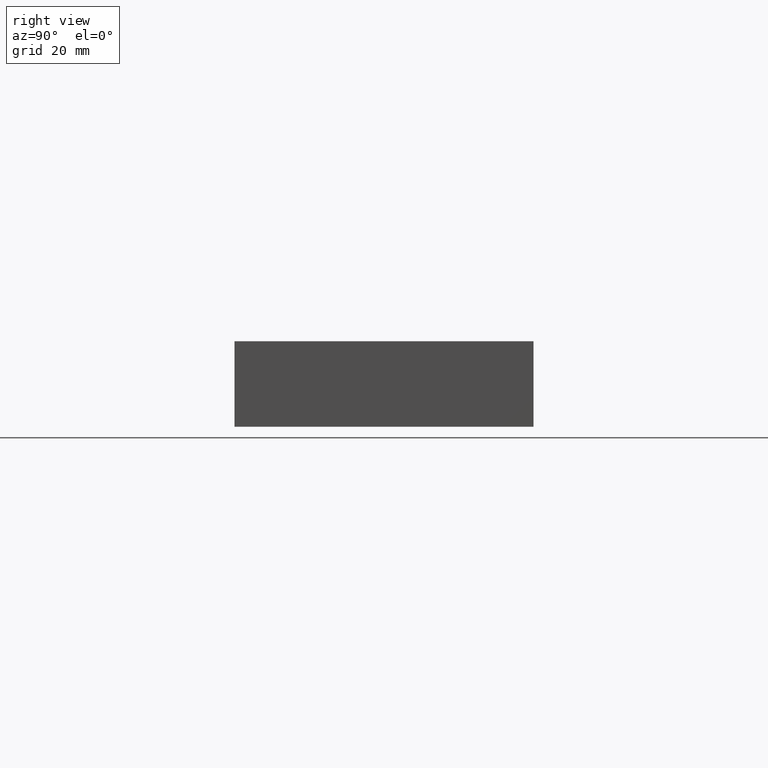
[diagram: clean part render]
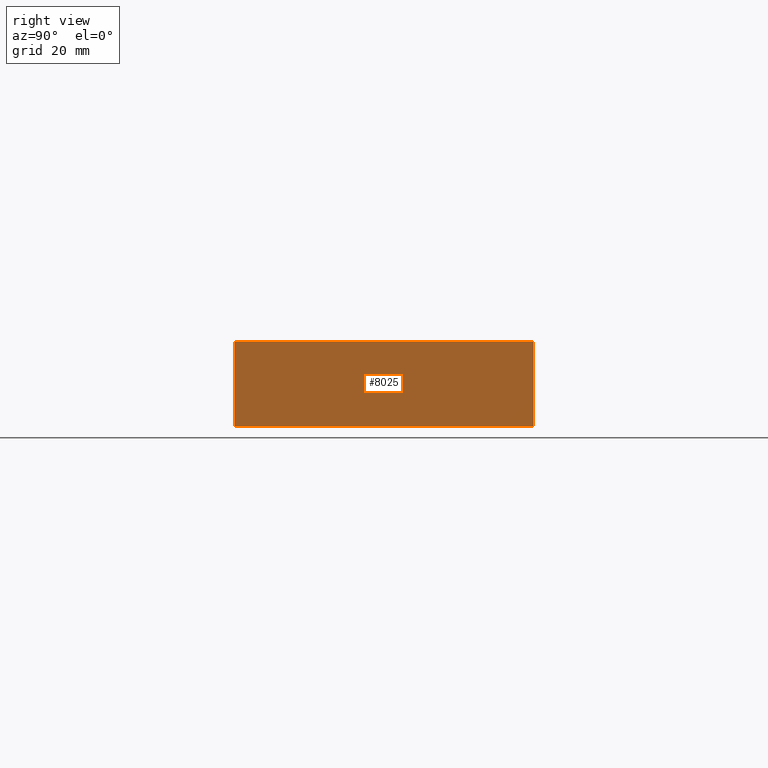
[diagram: same view with one face highlighted and labeled with its STEP entity id]
A machine part, right view. The second image highlights one B-rep face of the part: STEP entity #8025.
In plain terms, the highlighted planar face has unit normal (1, 0, 0).
Its self-contained STEP definition (entity closure, byte-faithful):
#494=PLANE('',#8451);
#893=FACE_OUTER_BOUND('',#1330,.T.);
#1330=EDGE_LOOP('',(#7131,#7132,#7133,#7134));
#1705=LINE('',#12289,#2478);
#2136=LINE('',#13915,#2909);
#2137=LINE('',#13917,#2910);
#2138=LINE('',#13918,#2911);
#2478=VECTOR('',#8980,10.);
#2909=VECTOR('',#10043,10.);
#2910=VECTOR('',#10044,10.);
#2911=VECTOR('',#10045,10.);
#3480=VERTEX_POINT('',#12282);
#3483=VERTEX_POINT('',#12287);
#3884=VERTEX_POINT('',#13914);
#3885=VERTEX_POINT('',#13916);
#4405=EDGE_CURVE('',#3480,#3483,#1705,.T.);
#4988=EDGE_CURVE('',#3884,#3480,#2136,.T.);
#4989=EDGE_CURVE('',#3885,#3483,#2137,.T.);
#4990=EDGE_CURVE('',#3884,#3885,#2138,.T.);
#7131=ORIENTED_EDGE('',*,*,#4988,.T.);
#7132=ORIENTED_EDGE('',*,*,#4405,.T.);
#7133=ORIENTED_EDGE('',*,*,#4989,.F.);
#7134=ORIENTED_EDGE('',*,*,#4990,.F.);
#8025=ADVANCED_FACE('',(#893),#494,.T.);
#8451=AXIS2_PLACEMENT_3D('',#13913,#10041,#10042);
#8980=DIRECTION('',(0.,0.,1.));
#10041=DIRECTION('center_axis',(1.,0.,0.));
#10042=DIRECTION('ref_axis',(0.,1.,0.));
#10043=DIRECTION('',(0.,1.,0.));
#10044=DIRECTION('',(0.,1.,0.));
#10045=DIRECTION('',(0.,0.,1.));
#12282=CARTESIAN_POINT('',(196.85,88.9,0.));
#12287=CARTESIAN_POINT('',(196.85,88.9,25.4));
#12289=CARTESIAN_POINT('',(196.85,88.9,0.));
#13913=CARTESIAN_POINT('Origin',(196.85,0.,0.));
#13914=CARTESIAN_POINT('',(196.85,0.,0.));
#13915=CARTESIAN_POINT('',(196.85,0.,0.));
#13916=CARTESIAN_POINT('',(196.85,0.,25.4));
#13917=CARTESIAN_POINT('',(196.85,0.,25.4));
#13918=CARTESIAN_POINT('',(196.85,0.,0.));